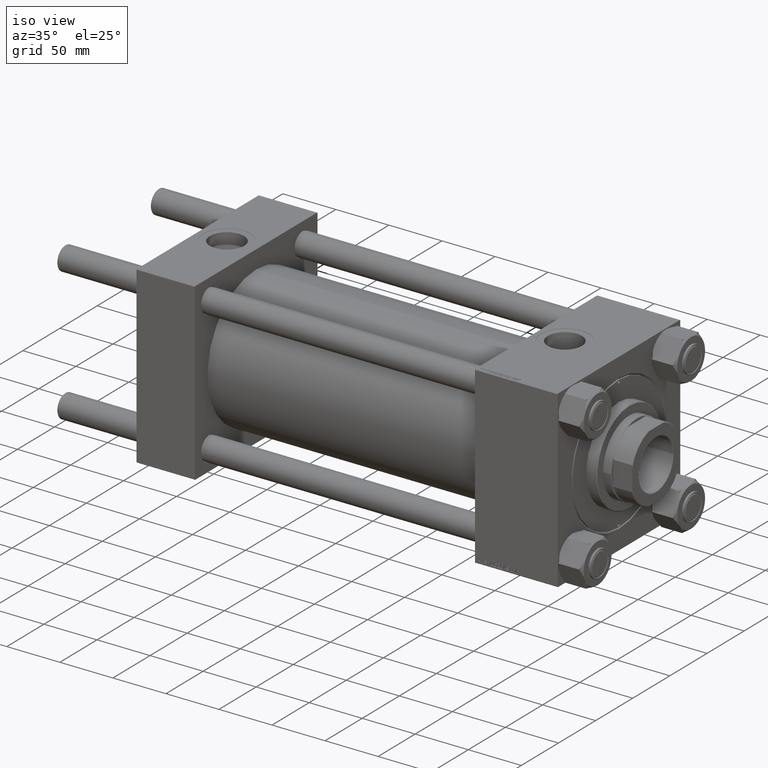
[diagram: clean part render]
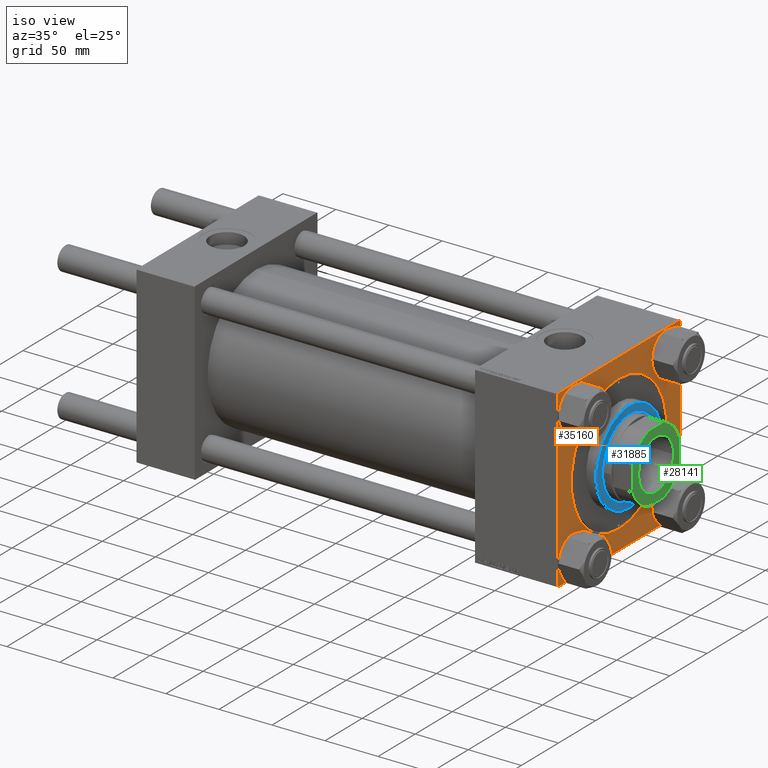
[diagram: same view with three faces highlighted in distinct colors, each labeled with its STEP entity id]
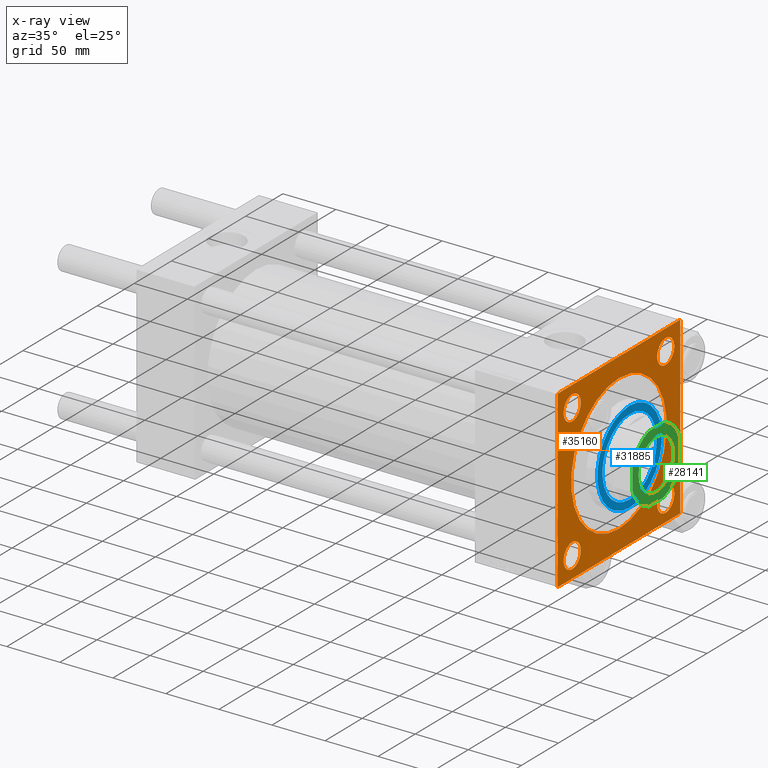
[diagram: x-ray of the same camera — body ghosted, the three highlighted faces saturated]
A machine part, iso view with three faces highlighted in distinct colors.
The next image is the same camera in x-ray (body ghosted, the three faces saturated) — at least one of them is partly hidden behind the body in this view.
Their STEP definitions:

[orange] entity #35160 — the highlighted planar face has unit normal (-1, 0, 0).
#137 = EDGE_CURVE ( 'NONE', #15495, #19566, #29631, .T. ) ;
#303 = VECTOR ( 'NONE', #2034, 1000.000000000000000 ) ;
#306 = CARTESIAN_POINT ( 'NONE',  ( 397.0000000000000000, -62.94999999999998153, -62.95000000000001705 ) ) ;
#600 = EDGE_CURVE ( 'NONE', #48801, #47392, #28790, .T. ) ;
#788 = AXIS2_PLACEMENT_3D ( 'NONE', #24598, #44009, #9303 ) ;
#1582 = ORIENTED_EDGE ( 'NONE', *, *, #23330, .F. ) ;
#1980 = DIRECTION ( 'NONE',  ( -1.000000000000000000, -0.000000000000000000, 0.000000000000000000 ) ) ;
#2034 = DIRECTION ( 'NONE',  ( 0.000000000000000000, -1.682156097916903834E-16, -1.000000000000000000 ) ) ;
#2318 = ORIENTED_EDGE ( 'NONE', *, *, #600, .T. ) ;
#2773 = VECTOR ( 'NONE', #41918, 1000.000000000000114 ) ;
#3065 = AXIS2_PLACEMENT_3D ( 'NONE', #47891, #15820, #46964 ) ;
#3105 = DIRECTION ( 'NONE',  ( 0.000000000000000000, 0.7071067811865574537, -0.7071067811865376918 ) ) ;
#3339 = CARTESIAN_POINT ( 'NONE',  ( 397.0000000000000000, -82.49999999999997158, 81.99999999999997158 ) ) ;
#3634 = DIRECTION ( 'NONE',  ( -1.000000000000000000, -0.000000000000000000, 0.000000000000000000 ) ) ;
#3951 = EDGE_LOOP ( 'NONE', ( #10855, #14081 ) ) ;
#4132 = EDGE_CURVE ( 'NONE', #19566, #29622, #36003, .T. ) ;
#4695 = EDGE_LOOP ( 'NONE', ( #15869, #28715 ) ) ;
#4775 = EDGE_CURVE ( 'NONE', #48126, #9468, #36888, .T. ) ;
#4826 = ORIENTED_EDGE ( 'NONE', *, *, #4775, .T. ) ;
#5064 = CIRCLE ( 'NONE', #7524, 11.50000000000001066 ) ;
#5302 = FACE_BOUND ( 'NONE', #3951, .T. ) ;
#5960 = AXIS2_PLACEMENT_3D ( 'NONE', #15784, #12207, #49992 ) ;
#6181 = LINE ( 'NONE', #10256, #35303 ) ;
#6905 = ORIENTED_EDGE ( 'NONE', *, *, #36046, .T. ) ;
#6948 = LINE ( 'NONE', #41902, #8381 ) ;
#7213 = CARTESIAN_POINT ( 'NONE',  ( 397.0000000000000000, 82.50000000000001421, -82.00000000000002842 ) ) ;
#7524 = AXIS2_PLACEMENT_3D ( 'NONE', #40778, #33115, #33622 ) ;
#8038 = VERTEX_POINT ( 'NONE', #26240 ) ;
#8381 = VECTOR ( 'NONE', #37317, 1000.000000000000114 ) ;
#8635 = CARTESIAN_POINT ( 'NONE',  ( 397.0000000000000000, 62.95000000000000284, 51.44999999999999574 ) ) ;
#8995 = LINE ( 'NONE', #39381, #13023 ) ;
#9303 = DIRECTION ( 'NONE',  ( 0.000000000000000000, 0.000000000000000000, 1.000000000000000000 ) ) ;
#9468 = VERTEX_POINT ( 'NONE', #23478 ) ;
#9635 = CARTESIAN_POINT ( 'NONE',  ( 397.0000000000000000, 62.95000000000000284, -74.45000000000001705 ) ) ;
#9844 = EDGE_LOOP ( 'NONE', ( #31197, #18808 ) ) ;
#10033 = DIRECTION ( 'NONE',  ( -1.000000000000000000, -0.000000000000000000, 0.000000000000000000 ) ) ;
#10129 = CARTESIAN_POINT ( 'NONE',  ( 397.0000000000000000, 82.50000000000001421, -82.50000000000002842 ) ) ;
#10256 = CARTESIAN_POINT ( 'NONE',  ( 397.0000000000000000, -81.99999999999998579, -82.50000000000002842 ) ) ;
#10429 = ORIENTED_EDGE ( 'NONE', *, *, #137, .T. ) ;
#10855 = ORIENTED_EDGE ( 'NONE', *, *, #21734, .T. ) ;
#11412 = AXIS2_PLACEMENT_3D ( 'NONE', #28768, #29025, #44345 ) ;
#12207 = DIRECTION ( 'NONE',  ( -1.000000000000000000, -0.000000000000000000, 0.000000000000000000 ) ) ;
#12308 = DIRECTION ( 'NONE',  ( -1.000000000000000000, -0.000000000000000000, 0.000000000000000000 ) ) ;
#12594 = EDGE_CURVE ( 'NONE', #28795, #9468, #28977, .T. ) ;
#12612 = VERTEX_POINT ( 'NONE', #41464 ) ;
#12808 = VECTOR ( 'NONE', #48353, 1000.000000000000000 ) ;
#13023 = VECTOR ( 'NONE', #16877, 1000.000000000000000 ) ;
#13201 = FACE_OUTER_BOUND ( 'NONE', #34847, .T. ) ;
#13453 = PLANE ( 'NONE',  #11412 ) ;
#14055 = VERTEX_POINT ( 'NONE', #37461 ) ;
#14081 = ORIENTED_EDGE ( 'NONE', *, *, #22383, .T. ) ;
#14099 = EDGE_CURVE ( 'NONE', #14055, #12612, #32423, .T. ) ;
#14146 = VECTOR ( 'NONE', #49517, 999.9999999999998863 ) ;
#14227 = CARTESIAN_POINT ( 'NONE',  ( 397.0000000000000000, -62.94999999999998153, 62.95000000000001705 ) ) ;
#14701 = CARTESIAN_POINT ( 'NONE',  ( 397.0000000000000000, 82.50000000000001421, 82.00000000000000000 ) ) ;
#15355 = DIRECTION ( 'NONE',  ( 0.000000000000000000, 0.000000000000000000, 1.000000000000000000 ) ) ;
#15495 = VERTEX_POINT ( 'NONE', #18485 ) ;
#15784 = CARTESIAN_POINT ( 'NONE',  ( 397.0000000000000000, 62.95000000000000284, -62.95000000000000284 ) ) ;
#15820 = DIRECTION ( 'NONE',  ( -1.000000000000000000, -0.000000000000000000, 0.000000000000000000 ) ) ;
#15869 = ORIENTED_EDGE ( 'NONE', *, *, #44176, .T. ) ;
#16157 = EDGE_CURVE ( 'NONE', #12612, #14055, #31576, .T. ) ;
#16877 = DIRECTION ( 'NONE',  ( 0.000000000000000000, -1.000000000000000000, -1.682156097916904081E-16 ) ) ;
#17603 = VERTEX_POINT ( 'NONE', #9635 ) ;
#18123 = ORIENTED_EDGE ( 'NONE', *, *, #44093, .T. ) ;
#18373 = CARTESIAN_POINT ( 'NONE',  ( 397.0000000000000000, 62.95000000000000284, -51.44999999999999574 ) ) ;
#18485 = CARTESIAN_POINT ( 'NONE',  ( 397.0000000000000000, -81.99999999999995737, 82.49999999999997158 ) ) ;
#18735 = VECTOR ( 'NONE', #42282, 1000.000000000000000 ) ;
#18808 = ORIENTED_EDGE ( 'NONE', *, *, #14099, .T. ) ;
#19566 = VERTEX_POINT ( 'NONE', #27151 ) ;
#19730 = CARTESIAN_POINT ( 'NONE',  ( 397.0000000000000000, -62.94999999999998153, -74.45000000000003126 ) ) ;
#20366 = CIRCLE ( 'NONE', #35894, 11.50000000000001066 ) ;
#20435 = ORIENTED_EDGE ( 'NONE', *, *, #4132, .T. ) ;
#20842 = FACE_BOUND ( 'NONE', #23848, .T. ) ;
#21734 = EDGE_CURVE ( 'NONE', #50326, #29566, #37455, .T. ) ;
#22106 = EDGE_CURVE ( 'NONE', #45201, #41812, #22779, .T. ) ;
#22249 = ORIENTED_EDGE ( 'NONE', *, *, #46974, .T. ) ;
#22383 = EDGE_CURVE ( 'NONE', #29566, #50326, #36647, .T. ) ;
#22446 = EDGE_CURVE ( 'NONE', #48371, #15495, #8995, .T. ) ;
#22779 = CIRCLE ( 'NONE', #788, 11.50000000000001066 ) ;
#22907 = DIRECTION ( 'NONE',  ( 0.000000000000000000, 0.000000000000000000, 1.000000000000000000 ) ) ;
#23330 = EDGE_CURVE ( 'NONE', #48126, #8038, #30286, .T. ) ;
#23478 = CARTESIAN_POINT ( 'NONE',  ( 397.0000000000000000, 82.50000000000001421, -82.00000000000002842 ) ) ;
#23848 = EDGE_LOOP ( 'NONE', ( #27345, #6905 ) ) ;
#24283 = CARTESIAN_POINT ( 'NONE',  ( 397.0000000000000000, -62.94999999999998153, -62.95000000000001705 ) ) ;
#24598 = CARTESIAN_POINT ( 'NONE',  ( 397.0000000000000000, -62.94999999999998153, 62.95000000000001705 ) ) ;
#25842 = CARTESIAN_POINT ( 'NONE',  ( 397.0000000000000000, 62.95000000000000284, -62.95000000000000284 ) ) ;
#26240 = CARTESIAN_POINT ( 'NONE',  ( 397.0000000000000000, -81.99999999999998579, -82.50000000000002842 ) ) ;
#26754 = DIRECTION ( 'NONE',  ( -1.000000000000000000, -0.000000000000000000, 0.000000000000000000 ) ) ;
#27151 = CARTESIAN_POINT ( 'NONE',  ( 397.0000000000000000, -82.49999999999997158, 81.99999999999997158 ) ) ;
#27345 = ORIENTED_EDGE ( 'NONE', *, *, #48267, .T. ) ;
#28473 = AXIS2_PLACEMENT_3D ( 'NONE', #306, #3634, #15355 ) ;
#28715 = ORIENTED_EDGE ( 'NONE', *, *, #22106, .T. ) ;
#28768 = CARTESIAN_POINT ( 'NONE',  ( 397.0000000000000000, 0.000000000000000000, 0.000000000000000000 ) ) ;
#28790 = CIRCLE ( 'NONE', #41851, 11.50000000000001066 ) ;
#28795 = VERTEX_POINT ( 'NONE', #14701 ) ;
#28977 = LINE ( 'NONE', #47852, #12808 ) ;
#29025 = DIRECTION ( 'NONE',  ( -1.000000000000000000, -0.000000000000000000, 0.000000000000000000 ) ) ;
#29566 = VERTEX_POINT ( 'NONE', #44660 ) ;
#29622 = VERTEX_POINT ( 'NONE', #45164 ) ;
#29631 = LINE ( 'NONE', #3339, #14146 ) ;
#30286 = LINE ( 'NONE', #10129, #18735 ) ;
#30842 = CARTESIAN_POINT ( 'NONE',  ( 397.0000000000000000, 62.95000000000000284, 62.95000000000000284 ) ) ;
#31197 = ORIENTED_EDGE ( 'NONE', *, *, #16157, .T. ) ;
#31239 = CARTESIAN_POINT ( 'NONE',  ( 397.0000000000000000, 82.00000000000001421, -82.50000000000002842 ) ) ;
#31576 = CIRCLE ( 'NONE', #3065, 64.25000000000002842 ) ;
#31757 = AXIS2_PLACEMENT_3D ( 'NONE', #24283, #12308, #35550 ) ;
#31856 = CARTESIAN_POINT ( 'NONE',  ( 397.0000000000000000, 82.00000000000001421, 82.50000000000000000 ) ) ;
#32313 = AXIS2_PLACEMENT_3D ( 'NONE', #36954, #1980, #49673 ) ;
#32423 = CIRCLE ( 'NONE', #32313, 64.25000000000002842 ) ;
#32596 = FACE_BOUND ( 'NONE', #4695, .T. ) ;
#32626 = ORIENTED_EDGE ( 'NONE', *, *, #12594, .F. ) ;
#32742 = CIRCLE ( 'NONE', #36028, 11.50000000000001066 ) ;
#32770 = VERTEX_POINT ( 'NONE', #18373 ) ;
#32867 = DIRECTION ( 'NONE',  ( -1.000000000000000000, -0.000000000000000000, 0.000000000000000000 ) ) ;
#33115 = DIRECTION ( 'NONE',  ( -1.000000000000000000, -0.000000000000000000, 0.000000000000000000 ) ) ;
#33622 = DIRECTION ( 'NONE',  ( 0.000000000000000000, 0.000000000000000000, 1.000000000000000000 ) ) ;
#34644 = DIRECTION ( 'NONE',  ( 0.000000000000000000, 0.000000000000000000, 1.000000000000000000 ) ) ;
#34847 = EDGE_LOOP ( 'NONE', ( #20435, #47443, #1582, #4826, #32626, #22249, #37862, #10429 ) ) ;
#35160 = ADVANCED_FACE ( 'NONE', ( #5302, #20842, #36439, #32596, #48154, #13201 ), #13453, .F. ) ;
#35303 = VECTOR ( 'NONE', #3105, 999.9999999999998863 ) ;
#35550 = DIRECTION ( 'NONE',  ( 0.000000000000000000, 0.000000000000000000, 1.000000000000000000 ) ) ;
#35894 = AXIS2_PLACEMENT_3D ( 'NONE', #25842, #10033, #41170 ) ;
#36003 = LINE ( 'NONE', #48719, #303 ) ;
#36028 = AXIS2_PLACEMENT_3D ( 'NONE', #14227, #32867, #34644 ) ;
#36046 = EDGE_CURVE ( 'NONE', #32770, #17603, #20366, .T. ) ;
#36439 = FACE_BOUND ( 'NONE', #47319, .T. ) ;
#36647 = CIRCLE ( 'NONE', #31757, 11.50000000000001066 ) ;
#36888 = LINE ( 'NONE', #7213, #2773 ) ;
#36954 = CARTESIAN_POINT ( 'NONE',  ( 397.0000000000000000, 0.000000000000000000, 0.000000000000000000 ) ) ;
#37317 = DIRECTION ( 'NONE',  ( 0.000000000000000000, -0.7071067811865474617, 0.7071067811865474617 ) ) ;
#37455 = CIRCLE ( 'NONE', #28473, 11.50000000000001066 ) ;
#37461 = CARTESIAN_POINT ( 'NONE',  ( 397.0000000000000000, 7.868355684521749046E-15, 64.25000000000002842 ) ) ;
#37498 = CARTESIAN_POINT ( 'NONE',  ( 397.0000000000000000, -62.94999999999998153, 51.45000000000000995 ) ) ;
#37862 = ORIENTED_EDGE ( 'NONE', *, *, #22446, .T. ) ;
#39381 = CARTESIAN_POINT ( 'NONE',  ( 397.0000000000000000, 82.50000000000001421, 82.50000000000000000 ) ) ;
#40778 = CARTESIAN_POINT ( 'NONE',  ( 397.0000000000000000, 62.95000000000000284, 62.95000000000000284 ) ) ;
#41170 = DIRECTION ( 'NONE',  ( 0.000000000000000000, 0.000000000000000000, 1.000000000000000000 ) ) ;
#41464 = CARTESIAN_POINT ( 'NONE',  ( 397.0000000000000000, 0.000000000000000000, -64.25000000000002842 ) ) ;
#41812 = VERTEX_POINT ( 'NONE', #37498 ) ;
#41851 = AXIS2_PLACEMENT_3D ( 'NONE', #30842, #26754, #22907 ) ;
#41902 = CARTESIAN_POINT ( 'NONE',  ( 397.0000000000000000, 82.00000000000001421, 82.50000000000000000 ) ) ;
#41918 = DIRECTION ( 'NONE',  ( -0.000000000000000000, 0.7071067811865474617, 0.7071067811865474617 ) ) ;
#42282 = DIRECTION ( 'NONE',  ( 0.000000000000000000, -1.000000000000000000, 0.000000000000000000 ) ) ;
#44009 = DIRECTION ( 'NONE',  ( -1.000000000000000000, -0.000000000000000000, 0.000000000000000000 ) ) ;
#44093 = EDGE_CURVE ( 'NONE', #47392, #48801, #5064, .T. ) ;
#44176 = EDGE_CURVE ( 'NONE', #41812, #45201, #32742, .T. ) ;
#44345 = DIRECTION ( 'NONE',  ( 0.000000000000000000, 0.000000000000000000, 1.000000000000000000 ) ) ;
#44660 = CARTESIAN_POINT ( 'NONE',  ( 397.0000000000000000, -62.94999999999998153, -51.45000000000000995 ) ) ;
#44806 = CARTESIAN_POINT ( 'NONE',  ( 397.0000000000000000, -62.94999999999998153, 74.45000000000003126 ) ) ;
#45164 = CARTESIAN_POINT ( 'NONE',  ( 397.0000000000000000, -82.50000000000000000, -82.00000000000002842 ) ) ;
#45201 = VERTEX_POINT ( 'NONE', #44806 ) ;
#46964 = DIRECTION ( 'NONE',  ( 0.000000000000000000, 0.000000000000000000, 1.000000000000000000 ) ) ;
#46970 = EDGE_CURVE ( 'NONE', #29622, #8038, #6181, .T. ) ;
#46974 = EDGE_CURVE ( 'NONE', #28795, #48371, #6948, .T. ) ;
#47319 = EDGE_LOOP ( 'NONE', ( #18123, #2318 ) ) ;
#47392 = VERTEX_POINT ( 'NONE', #8635 ) ;
#47443 = ORIENTED_EDGE ( 'NONE', *, *, #46970, .T. ) ;
#47522 = CIRCLE ( 'NONE', #5960, 11.50000000000001066 ) ;
#47852 = CARTESIAN_POINT ( 'NONE',  ( 397.0000000000000000, 82.50000000000001421, 82.50000000000000000 ) ) ;
#47891 = CARTESIAN_POINT ( 'NONE',  ( 397.0000000000000000, 0.000000000000000000, 0.000000000000000000 ) ) ;
#48126 = VERTEX_POINT ( 'NONE', #31239 ) ;
#48154 = FACE_BOUND ( 'NONE', #9844, .T. ) ;
#48267 = EDGE_CURVE ( 'NONE', #17603, #32770, #47522, .T. ) ;
#48353 = DIRECTION ( 'NONE',  ( 0.000000000000000000, 0.000000000000000000, -1.000000000000000000 ) ) ;
#48371 = VERTEX_POINT ( 'NONE', #31856 ) ;
#48719 = CARTESIAN_POINT ( 'NONE',  ( 397.0000000000000000, -82.49999999999997158, 82.49999999999997158 ) ) ;
#48801 = VERTEX_POINT ( 'NONE', #49107 ) ;
#49107 = CARTESIAN_POINT ( 'NONE',  ( 397.0000000000000000, 62.95000000000000284, 74.45000000000001705 ) ) ;
#49517 = DIRECTION ( 'NONE',  ( -0.000000000000000000, -0.7071067811865574537, -0.7071067811865376918 ) ) ;
#49673 = DIRECTION ( 'NONE',  ( 0.000000000000000000, 0.000000000000000000, 1.000000000000000000 ) ) ;
#49992 = DIRECTION ( 'NONE',  ( 0.000000000000000000, 0.000000000000000000, 1.000000000000000000 ) ) ;
#50326 = VERTEX_POINT ( 'NONE', #19730 ) ;

[blue] entity #31885 — the highlighted planar face has unit normal (1, 0, -0).
#429 = DIRECTION ( 'NONE',  ( 1.000000000000000000, 0.000000000000000000, 0.000000000000000000 ) ) ;
#3265 = VERTEX_POINT ( 'NONE', #35493 ) ;
#3379 = DIRECTION ( 'NONE',  ( 0.000000000000000000, 0.000000000000000000, 1.000000000000000000 ) ) ;
#3457 = EDGE_CURVE ( 'NONE', #3265, #41520, #17481, .T. ) ;
#3902 = CIRCLE ( 'NONE', #16913, 36.50000000000000000 ) ;
#8910 = EDGE_LOOP ( 'NONE', ( #20870, #43372 ) ) ;
#9542 = VERTEX_POINT ( 'NONE', #10628 ) ;
#10628 = CARTESIAN_POINT ( 'NONE',  ( 36.50000000000000000, 0.000000000000000000, 38.69999999999999574 ) ) ;
#11732 = ORIENTED_EDGE ( 'NONE', *, *, #14205, .T. ) ;
#12027 = CIRCLE ( 'NONE', #24137, 36.50000000000000000 ) ;
#12949 = EDGE_CURVE ( 'NONE', #23536, #9542, #12027, .T. ) ;
#14205 = EDGE_CURVE ( 'NONE', #41520, #3265, #21683, .T. ) ;
#15229 = AXIS2_PLACEMENT_3D ( 'NONE', #43053, #28467, #429 ) ;
#16597 = FACE_BOUND ( 'NONE', #8910, .T. ) ;
#16913 = AXIS2_PLACEMENT_3D ( 'NONE', #18658, #38090, #41911 ) ;
#17481 = CIRCLE ( 'NONE', #32979, 43.50000000000001421 ) ;
#18037 = EDGE_CURVE ( 'NONE', #9542, #23536, #3902, .T. ) ;
#18585 = CARTESIAN_POINT ( 'NONE',  ( 0.000000000000000000, 0.000000000000000000, 38.69999999999999574 ) ) ;
#18658 = CARTESIAN_POINT ( 'NONE',  ( 0.000000000000000000, 0.000000000000000000, 38.69999999999999574 ) ) ;
#20870 = ORIENTED_EDGE ( 'NONE', *, *, #18037, .F. ) ;
#21683 = CIRCLE ( 'NONE', #15229, 43.50000000000001421 ) ;
#22718 = CARTESIAN_POINT ( 'NONE',  ( -43.50000000000001421, 0.000000000000000000, 38.69999999999999574 ) ) ;
#23536 = VERTEX_POINT ( 'NONE', #25117 ) ;
#24137 = AXIS2_PLACEMENT_3D ( 'NONE', #49801, #3379, #38100 ) ;
#25117 = CARTESIAN_POINT ( 'NONE',  ( -36.50000000000000000, 4.469960816887838430E-15, 38.69999999999999574 ) ) ;
#27368 = PLANE ( 'NONE',  #31142 ) ;
#27858 = DIRECTION ( 'NONE',  ( 1.000000000000000000, 0.000000000000000000, -0.000000000000000000 ) ) ;
#28467 = DIRECTION ( 'NONE',  ( 0.000000000000000000, 0.000000000000000000, 1.000000000000000000 ) ) ;
#29611 = EDGE_LOOP ( 'NONE', ( #11732, #38502 ) ) ;
#31142 = AXIS2_PLACEMENT_3D ( 'NONE', #43181, #31445, #27858 ) ;
#31445 = DIRECTION ( 'NONE',  ( 0.000000000000000000, 0.000000000000000000, 1.000000000000000000 ) ) ;
#31885 = ADVANCED_FACE ( 'NONE', ( #16597, #39608 ), #27368, .T. ) ;
#32979 = AXIS2_PLACEMENT_3D ( 'NONE', #18585, #49718, #45917 ) ;
#35493 = CARTESIAN_POINT ( 'NONE',  ( 43.50000000000001421, 5.357829746269670620E-15, 38.69999999999999574 ) ) ;
#38090 = DIRECTION ( 'NONE',  ( 0.000000000000000000, 0.000000000000000000, 1.000000000000000000 ) ) ;
#38100 = DIRECTION ( 'NONE',  ( 1.000000000000000000, 0.000000000000000000, 0.000000000000000000 ) ) ;
#38502 = ORIENTED_EDGE ( 'NONE', *, *, #3457, .T. ) ;
#39608 = FACE_OUTER_BOUND ( 'NONE', #29611, .T. ) ;
#41520 = VERTEX_POINT ( 'NONE', #22718 ) ;
#41911 = DIRECTION ( 'NONE',  ( 1.000000000000000000, 0.000000000000000000, 0.000000000000000000 ) ) ;
#43053 = CARTESIAN_POINT ( 'NONE',  ( 0.000000000000000000, 0.000000000000000000, 38.69999999999999574 ) ) ;
#43181 = CARTESIAN_POINT ( 'NONE',  ( 0.000000000000000000, 0.000000000000000000, 38.69999999999999574 ) ) ;
#43372 = ORIENTED_EDGE ( 'NONE', *, *, #12949, .F. ) ;
#45917 = DIRECTION ( 'NONE',  ( 1.000000000000000000, 0.000000000000000000, 0.000000000000000000 ) ) ;
#49718 = DIRECTION ( 'NONE',  ( 0.000000000000000000, 0.000000000000000000, 1.000000000000000000 ) ) ;
#49801 = CARTESIAN_POINT ( 'NONE',  ( 0.000000000000000000, 0.000000000000000000, 38.69999999999999574 ) ) ;

[green] entity #28141 — the highlighted planar face has unit normal (1, 0, -0).
#38 = AXIS2_PLACEMENT_3D ( 'NONE', #14281, #29851, #5875 ) ;
#220 = AXIS2_PLACEMENT_3D ( 'NONE', #14728, #10404, #25958 ) ;
#359 = LINE ( 'NONE', #23557, #370 ) ;
#370 = VECTOR ( 'NONE', #8270, 1000.000000000000000 ) ;
#885 = DIRECTION ( 'NONE',  ( 1.000000000000000000, 0.000000000000000000, 0.000000000000000000 ) ) ;
#987 = VERTEX_POINT ( 'NONE', #24535 ) ;
#2647 = CARTESIAN_POINT ( 'NONE',  ( 0.000000000000000000, 0.000000000000000000, 377.0000000000000000 ) ) ;
#2887 = CARTESIAN_POINT ( 'NONE',  ( 32.00000000000000000, 9.912113800799914998, 377.0000000000000000 ) ) ;
#2964 = ORIENTED_EDGE ( 'NONE', *, *, #42009, .T. ) ;
#3691 = EDGE_CURVE ( 'NONE', #23050, #987, #19809, .T. ) ;
#4949 = ORIENTED_EDGE ( 'NONE', *, *, #20619, .T. ) ;
#5875 = DIRECTION ( 'NONE',  ( 1.000000000000000000, 0.000000000000000000, 0.000000000000000000 ) ) ;
#6416 = VERTEX_POINT ( 'NONE', #2887 ) ;
#6484 = FACE_OUTER_BOUND ( 'NONE', #32938, .T. ) ;
#6982 = EDGE_CURVE ( 'NONE', #46325, #38723, #47934, .T. ) ;
#7774 = DIRECTION ( 'NONE',  ( 1.000000000000000000, 0.000000000000000000, 0.000000000000000000 ) ) ;
#8270 = DIRECTION ( 'NONE',  ( -1.084202172485504434E-16, 1.000000000000000000, -0.000000000000000000 ) ) ;
#9181 = CARTESIAN_POINT ( 'NONE',  ( -32.00000000000000711, 9.912113800799412289, 377.0000000000000000 ) ) ;
#9259 = DIRECTION ( 'NONE',  ( -0.000000000000000000, 0.000000000000000000, 1.000000000000000000 ) ) ;
#9611 = ORIENTED_EDGE ( 'NONE', *, *, #3691, .T. ) ;
#10404 = DIRECTION ( 'NONE',  ( -0.000000000000000000, 0.000000000000000000, 1.000000000000000000 ) ) ;
#10931 = CARTESIAN_POINT ( 'NONE',  ( -32.00000000000000000, -9.912113800799444263, 377.0000000000000000 ) ) ;
#11924 = VERTEX_POINT ( 'NONE', #48088 ) ;
#12119 = AXIS2_PLACEMENT_3D ( 'NONE', #13078, #9259, #32232 ) ;
#12189 = CARTESIAN_POINT ( 'NONE',  ( -23.55000000000001492, 2.884043211992018577E-15, 377.0000000000000000 ) ) ;
#12252 = CARTESIAN_POINT ( 'NONE',  ( 9.912113800799913221, 32.00000000000000000, 377.0000000000000000 ) ) ;
#12744 = ORIENTED_EDGE ( 'NONE', *, *, #6982, .T. ) ;
#13078 = CARTESIAN_POINT ( 'NONE',  ( 0.000000000000000000, 0.000000000000000000, 377.0000000000000000 ) ) ;
#13153 = CARTESIAN_POINT ( 'NONE',  ( -32.00000000000000000, -32.00000000000000000, 377.0000000000000000 ) ) ;
#13233 = DIRECTION ( 'NONE',  ( 1.084202172485504434E-16, -1.000000000000000000, 0.000000000000000000 ) ) ;
#14281 = CARTESIAN_POINT ( 'NONE',  ( 0.000000000000000000, 0.000000000000000000, 377.0000000000000000 ) ) ;
#14309 = EDGE_CURVE ( 'NONE', #26180, #11924, #48106, .T. ) ;
#14382 = DIRECTION ( 'NONE',  ( -0.000000000000000000, 0.000000000000000000, 1.000000000000000000 ) ) ;
#14584 = CARTESIAN_POINT ( 'NONE',  ( 32.00000000000000000, -9.912113800799843943, 377.0000000000000000 ) ) ;
#14728 = CARTESIAN_POINT ( 'NONE',  ( 0.000000000000000000, 0.000000000000000000, 377.0000000000000000 ) ) ;
#16155 = ORIENTED_EDGE ( 'NONE', *, *, #16550, .T. ) ;
#16167 = EDGE_CURVE ( 'NONE', #38723, #26180, #23405, .T. ) ;
#16539 = ORIENTED_EDGE ( 'NONE', *, *, #16167, .T. ) ;
#16550 = EDGE_CURVE ( 'NONE', #6416, #47120, #46269, .T. ) ;
#17008 = LINE ( 'NONE', #32344, #19649 ) ;
#17226 = ORIENTED_EDGE ( 'NONE', *, *, #50444, .T. ) ;
#18189 = DIRECTION ( 'NONE',  ( 1.000000000000000000, 0.000000000000000000, 0.000000000000000000 ) ) ;
#19649 = VECTOR ( 'NONE', #47897, 1000.000000000000000 ) ;
#19809 = CIRCLE ( 'NONE', #25529, 23.55000000000001492 ) ;
#20619 = EDGE_CURVE ( 'NONE', #11924, #46954, #27609, .T. ) ;
#21016 = DIRECTION ( 'NONE',  ( -0.000000000000000000, 0.000000000000000000, 1.000000000000000000 ) ) ;
#22759 = ORIENTED_EDGE ( 'NONE', *, *, #23908, .T. ) ;
#23050 = VERTEX_POINT ( 'NONE', #12189 ) ;
#23405 = CIRCLE ( 'NONE', #49491, 33.49999999999997868 ) ;
#23557 = CARTESIAN_POINT ( 'NONE',  ( 31.99999999999999289, 32.00000000000000000, 377.0000000000000000 ) ) ;
#23855 = CARTESIAN_POINT ( 'NONE',  ( 0.000000000000000000, 0.000000000000000000, 377.0000000000000000 ) ) ;
#23908 = EDGE_CURVE ( 'NONE', #987, #23050, #39133, .T. ) ;
#24535 = CARTESIAN_POINT ( 'NONE',  ( 23.55000000000001492, 0.000000000000000000, 377.0000000000000000 ) ) ;
#24644 = CARTESIAN_POINT ( 'NONE',  ( -9.912113800799440710, -32.00000000000000000, 377.0000000000000000 ) ) ;
#25529 = AXIS2_PLACEMENT_3D ( 'NONE', #30734, #27643, #7774 ) ;
#25858 = FACE_BOUND ( 'NONE', #34920, .T. ) ;
#25958 = DIRECTION ( 'NONE',  ( 1.000000000000000000, 0.000000000000000000, 0.000000000000000000 ) ) ;
#26180 = VERTEX_POINT ( 'NONE', #24644 ) ;
#26487 = VECTOR ( 'NONE', #13233, 1000.000000000000000 ) ;
#27609 = CIRCLE ( 'NONE', #12119, 33.50000000000009948 ) ;
#27643 = DIRECTION ( 'NONE',  ( 0.000000000000000000, -0.000000000000000000, -1.000000000000000000 ) ) ;
#28141 = ADVANCED_FACE ( 'NONE', ( #25858, #6484 ), #37622, .T. ) ;
#28251 = CARTESIAN_POINT ( 'NONE',  ( 0.000000000000000000, 0.000000000000000000, 377.0000000000000000 ) ) ;
#29851 = DIRECTION ( 'NONE',  ( 0.000000000000000000, -0.000000000000000000, -1.000000000000000000 ) ) ;
#30734 = CARTESIAN_POINT ( 'NONE',  ( 0.000000000000000000, 0.000000000000000000, 377.0000000000000000 ) ) ;
#31769 = ORIENTED_EDGE ( 'NONE', *, *, #14309, .T. ) ;
#31824 = AXIS2_PLACEMENT_3D ( 'NONE', #2647, #14382, #18189 ) ;
#32232 = DIRECTION ( 'NONE',  ( 1.000000000000000000, 0.000000000000000000, 0.000000000000000000 ) ) ;
#32344 = CARTESIAN_POINT ( 'NONE',  ( -32.00000000000000711, 32.00000000000000000, 377.0000000000000000 ) ) ;
#32938 = EDGE_LOOP ( 'NONE', ( #17226, #16155, #2964, #37773, #12744, #16539, #31769, #4949 ) ) ;
#34920 = EDGE_LOOP ( 'NONE', ( #22759, #9611 ) ) ;
#35272 = CIRCLE ( 'NONE', #220, 33.49999999999997158 ) ;
#37622 = PLANE ( 'NONE',  #31824 ) ;
#37773 = ORIENTED_EDGE ( 'NONE', *, *, #44971, .T. ) ;
#38723 = VERTEX_POINT ( 'NONE', #10931 ) ;
#39133 = CIRCLE ( 'NONE', #38, 23.55000000000001492 ) ;
#42009 = EDGE_CURVE ( 'NONE', #47120, #49029, #17008, .T. ) ;
#42190 = AXIS2_PLACEMENT_3D ( 'NONE', #23855, #21016, #885 ) ;
#43830 = DIRECTION ( 'NONE',  ( -0.000000000000000000, 0.000000000000000000, 1.000000000000000000 ) ) ;
#44971 = EDGE_CURVE ( 'NONE', #49029, #46325, #35272, .T. ) ;
#45813 = CARTESIAN_POINT ( 'NONE',  ( -9.912113800799417618, 32.00000000000000000, 377.0000000000000000 ) ) ;
#46269 = CIRCLE ( 'NONE', #42190, 33.50000000000012079 ) ;
#46325 = VERTEX_POINT ( 'NONE', #9181 ) ;
#46716 = DIRECTION ( 'NONE',  ( 1.000000000000000000, 0.000000000000000000, 0.000000000000000000 ) ) ;
#46954 = VERTEX_POINT ( 'NONE', #14584 ) ;
#47120 = VERTEX_POINT ( 'NONE', #12252 ) ;
#47897 = DIRECTION ( 'NONE',  ( -1.000000000000000000, -0.000000000000000000, -0.000000000000000000 ) ) ;
#47934 = LINE ( 'NONE', #48188, #26487 ) ;
#48088 = CARTESIAN_POINT ( 'NONE',  ( 9.912113800799845720, -32.00000000000000000, 377.0000000000000000 ) ) ;
#48106 = LINE ( 'NONE', #13153, #48614 ) ;
#48188 = CARTESIAN_POINT ( 'NONE',  ( -32.00000000000000711, 32.00000000000000000, 377.0000000000000000 ) ) ;
#48614 = VECTOR ( 'NONE', #48852, 1000.000000000000000 ) ;
#48852 = DIRECTION ( 'NONE',  ( 1.000000000000000000, 0.000000000000000000, 0.000000000000000000 ) ) ;
#49029 = VERTEX_POINT ( 'NONE', #45813 ) ;
#49491 = AXIS2_PLACEMENT_3D ( 'NONE', #28251, #43830, #46716 ) ;
#50444 = EDGE_CURVE ( 'NONE', #46954, #6416, #359, .T. ) ;